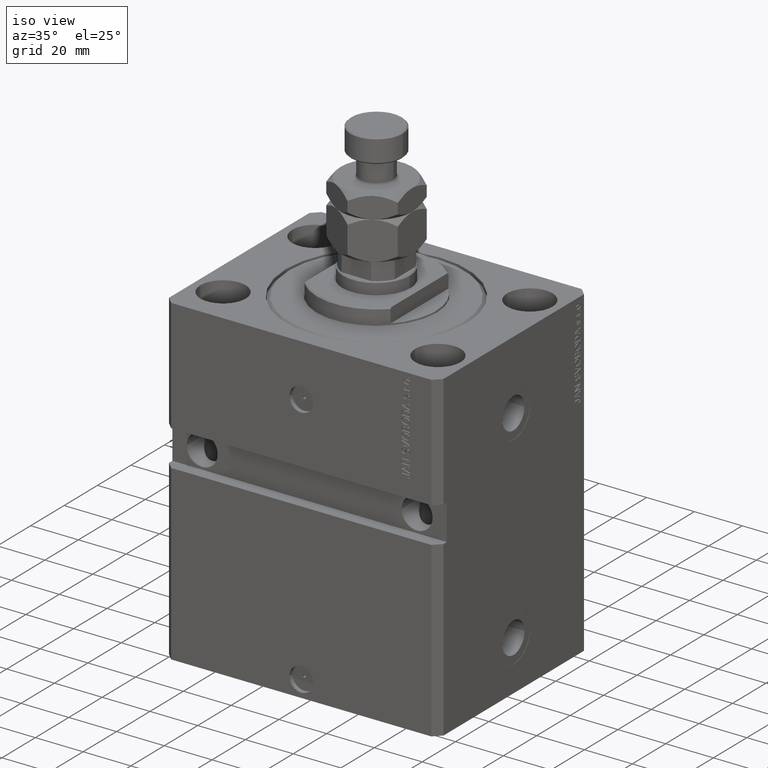
[diagram: clean part render]
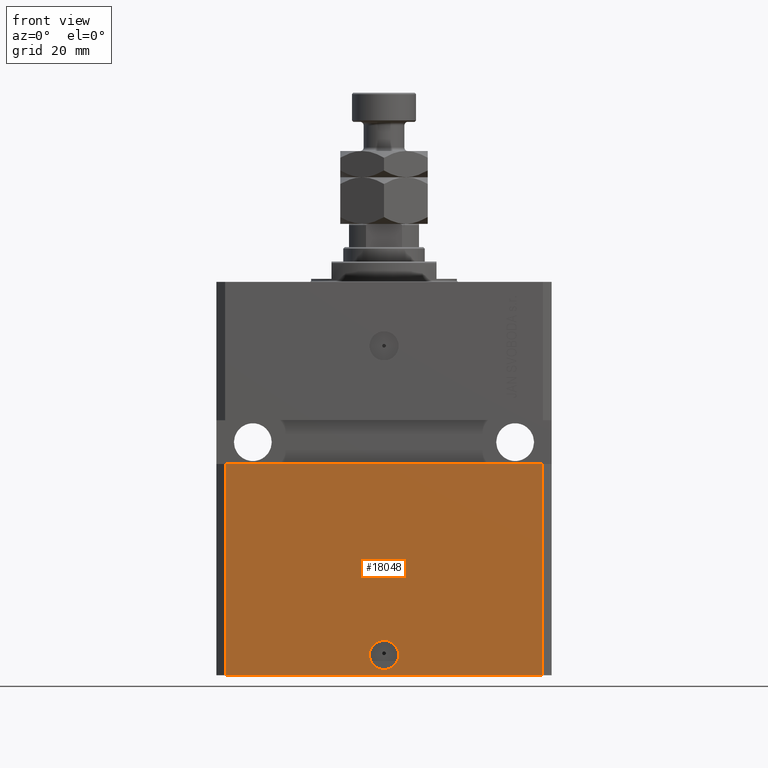
[diagram: tour spotlight — one face highlighted and labeled with its STEP entity id]
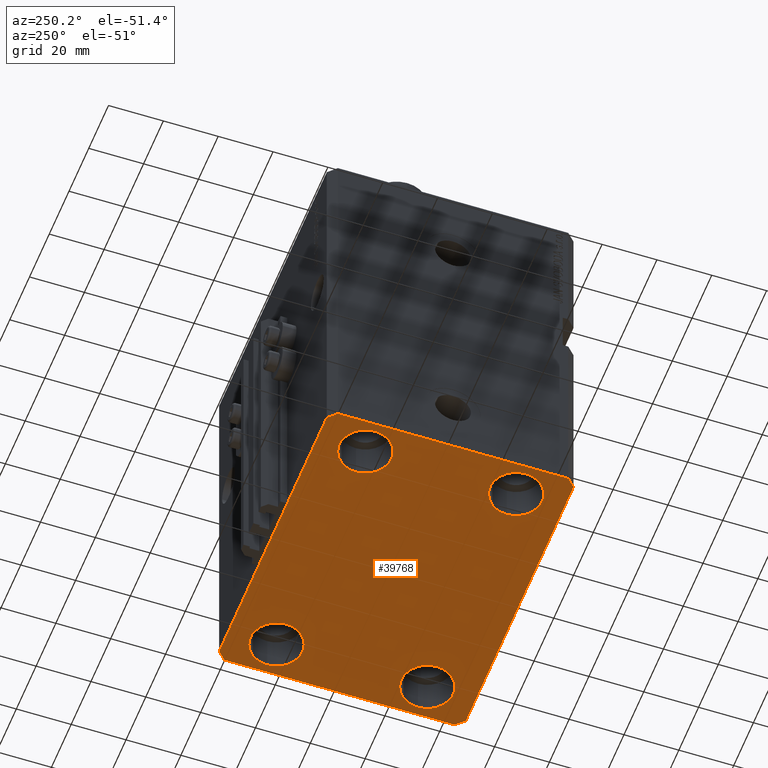
[diagram: tour spotlight — one face highlighted and labeled with its STEP entity id]
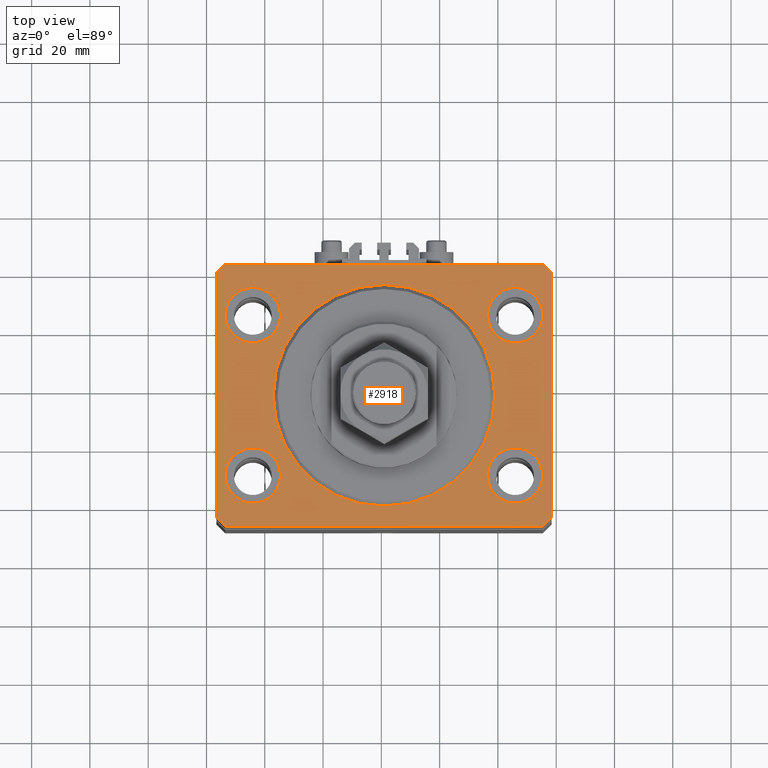
[diagram: tour spotlight — one face highlighted and labeled with its STEP entity id]
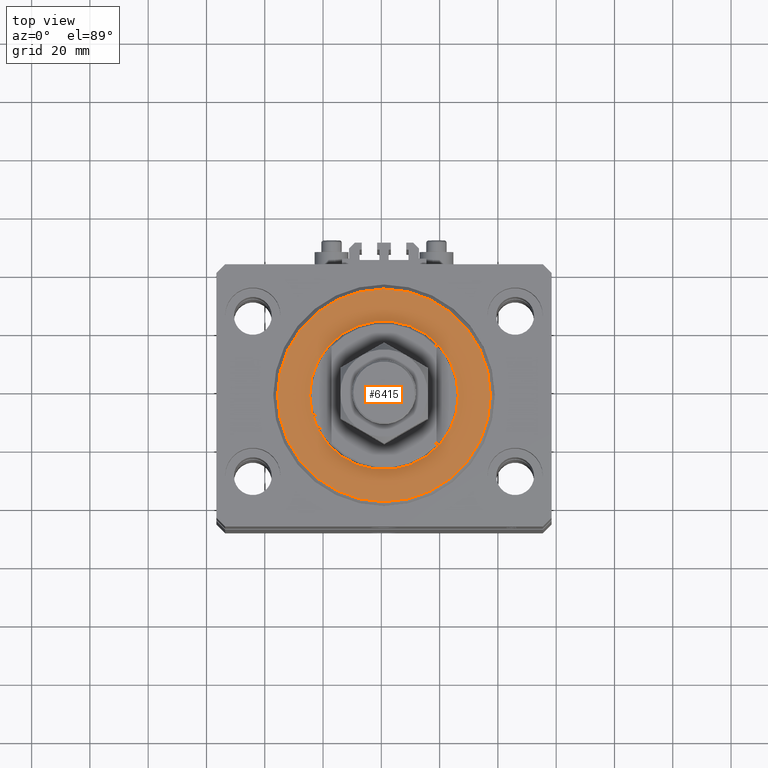
[diagram: tour spotlight — one face highlighted and labeled with its STEP entity id]
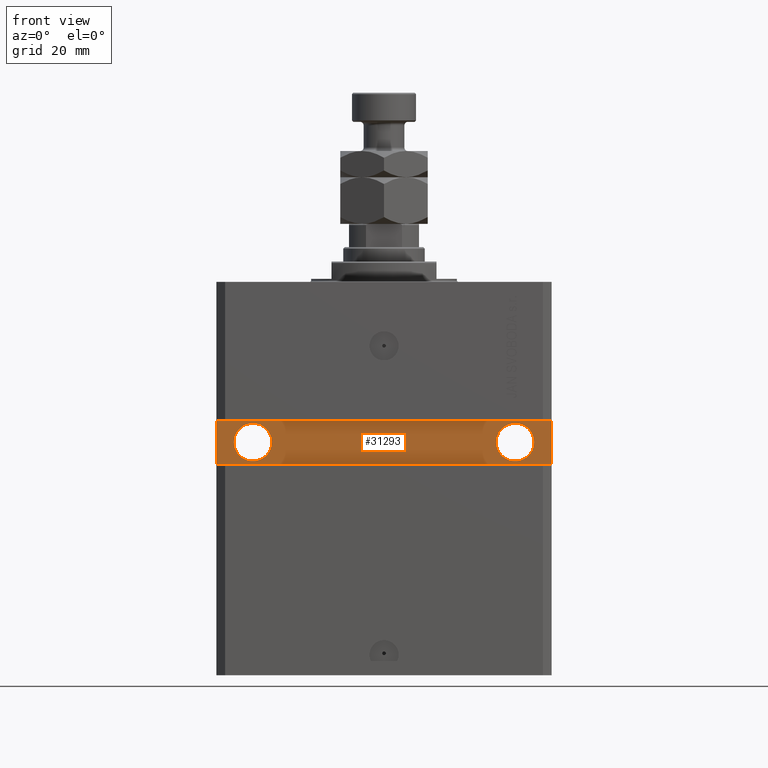
[diagram: tour spotlight — one face highlighted and labeled with its STEP entity id]
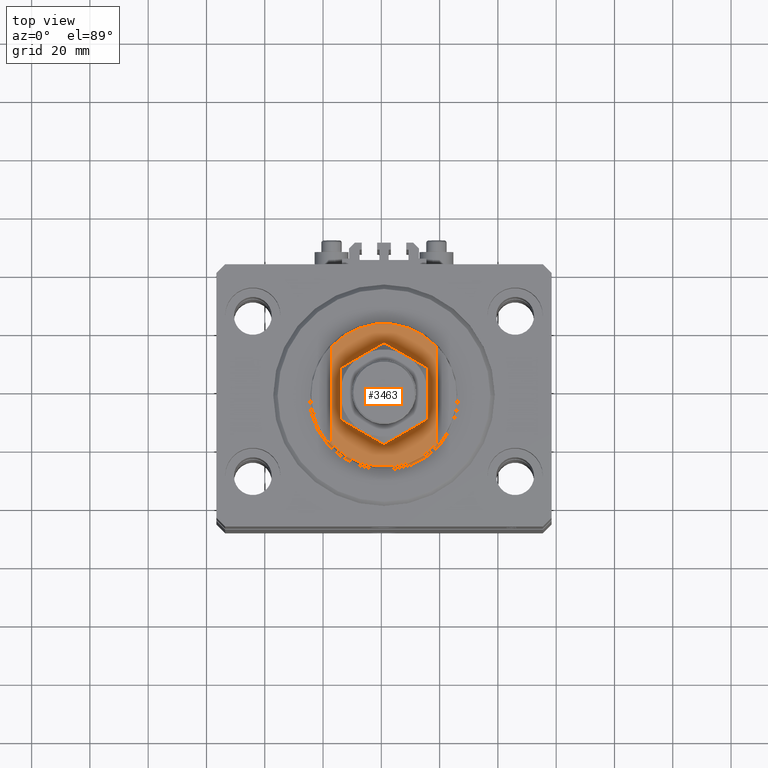
[diagram: tour spotlight — one face highlighted and labeled with its STEP entity id]
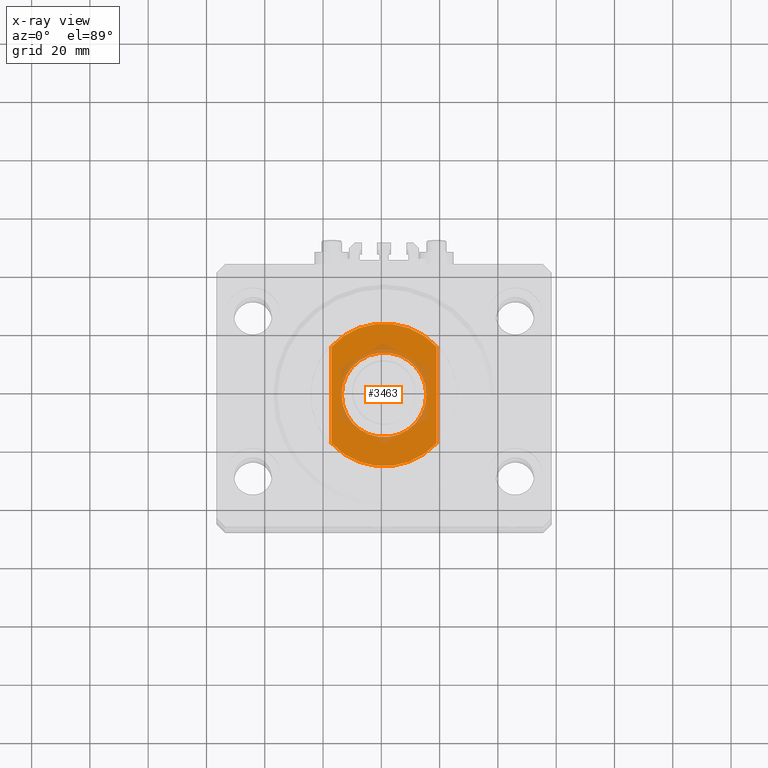
[diagram: x-ray of the same camera — body ghosted, this tour face saturated]
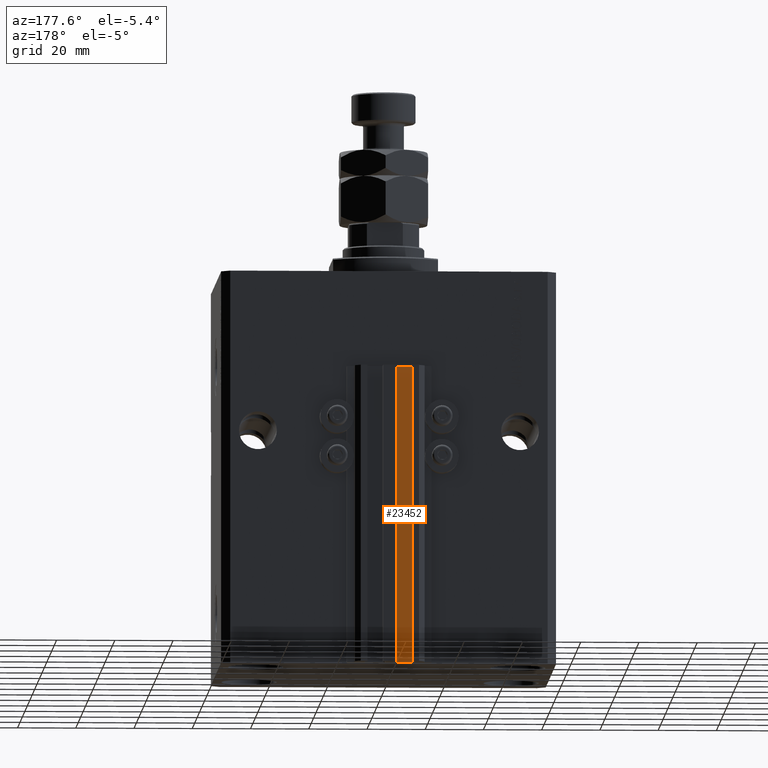
[diagram: tour spotlight — one face highlighted and labeled with its STEP entity id]
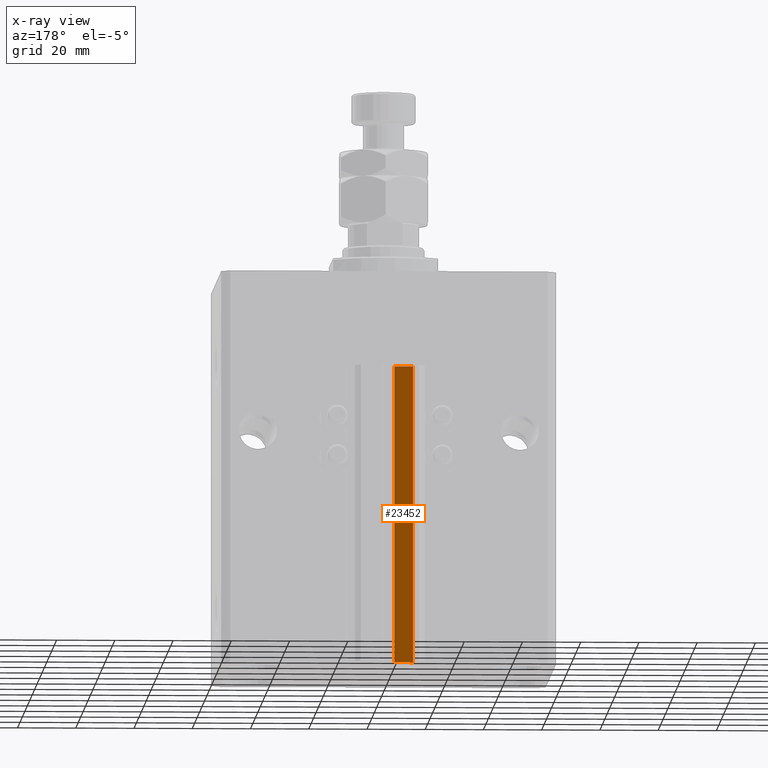
[diagram: x-ray of the same camera — body ghosted, this tour face saturated]
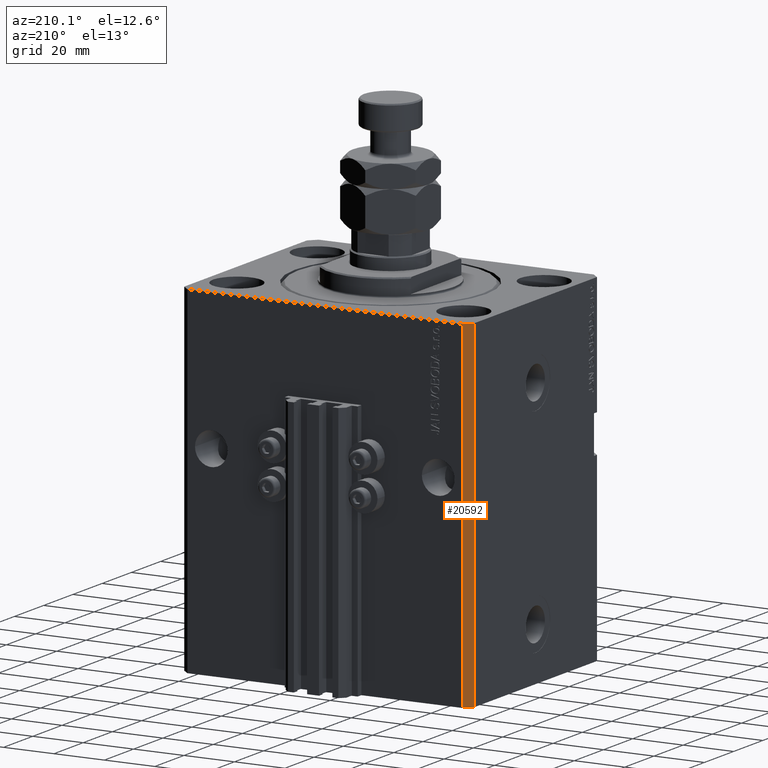
[diagram: tour spotlight — one face highlighted and labeled with its STEP entity id]
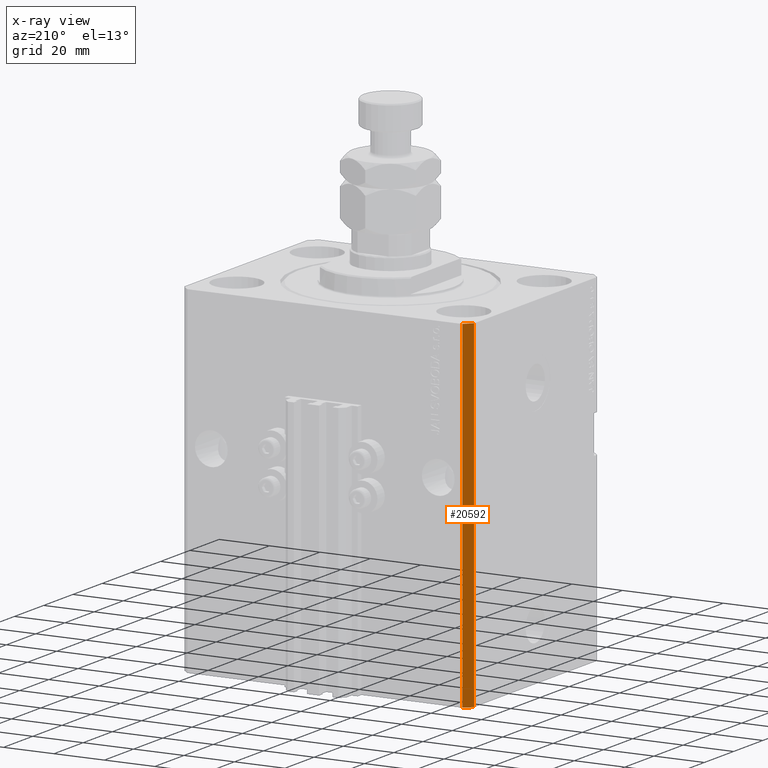
[diagram: x-ray of the same camera — body ghosted, this tour face saturated]
A machine part: a face-by-face anatomy tour. The part has 1175 B-rep faces; the first image is the clean iso view, then the 8 largest visible faces are spotlighted one at a time (largest first), each with its STEP entity span.

Face 1 — front view, entity #18048. In plain terms, the highlighted planar face has unit normal (0, -1, 0).
Definition (entity closure, byte-faithful):
#499 = VERTEX_POINT ( 'NONE', #36718 ) ;
#1494 = DIRECTION ( 'NONE',  ( 1.176083712526788232E-16, -1.000000000000000000, 0.000000000000000000 ) ) ;
#2262 = VERTEX_POINT ( 'NONE', #27358 ) ;
#2692 = EDGE_LOOP ( 'NONE', ( #16749, #21831 ) ) ;
#3036 = LINE ( 'NONE', #15402, #10445 ) ;
#4493 = EDGE_CURVE ( 'NONE', #46043, #27523, #38313, .T. ) ;
#4968 = EDGE_LOOP ( 'NONE', ( #18081, #10798, #20096, #33595 ) ) ;
#6915 = CARTESIAN_POINT ( 'NONE',  ( -54.50000000000000711, -45.00000000000000000, -135.0000000000000000 ) ) ;
#10050 = VECTOR ( 'NONE', #40646, 1000.000000000000000 ) ;
#10281 = FACE_BOUND ( 'NONE', #2692, .T. ) ;
#10445 = VECTOR ( 'NONE', #46766, 1000.000000000000000 ) ;
#10798 = ORIENTED_EDGE ( 'NONE', *, *, #34413, .F. ) ;
#12486 = CIRCLE ( 'NONE', #37949, 5.000000000000006217 ) ;
#13389 = DIRECTION ( 'NONE',  ( 1.273191542001326317E-16, -1.000000000000000000, 0.000000000000000000 ) ) ;
#13400 = VERTEX_POINT ( 'NONE', #25449 ) ;
#14406 = PLANE ( 'NONE',  #16103 ) ;
#14925 = VECTOR ( 'NONE', #49037, 1000.000000000000000 ) ;
#15091 = EDGE_CURVE ( 'NONE', #2262, #499, #3036, .T. ) ;
#15402 = CARTESIAN_POINT ( 'NONE',  ( -57.50000000000000711, -45.00000000000000000, -62.50000000000000000 ) ) ;
#15979 = VECTOR ( 'NONE', #26484, 1000.000000000000000 ) ;
#16103 = AXIS2_PLACEMENT_3D ( 'NONE', #48626, #13389, #25230 ) ;
#16151 = CARTESIAN_POINT ( 'NONE',  ( -54.50000000000000711, -45.00000000000000000, -135.0000000000000000 ) ) ;
#16749 = ORIENTED_EDGE ( 'NONE', *, *, #50555, .F. ) ;
#18048 = ADVANCED_FACE ( 'NONE', ( #10281, #33961 ), #14406, .T. ) ;
#18081 = ORIENTED_EDGE ( 'NONE', *, *, #15091, .F. ) ;
#20096 = ORIENTED_EDGE ( 'NONE', *, *, #4493, .T. ) ;
#20614 = AXIS2_PLACEMENT_3D ( 'NONE', #48567, #1494, #44454 ) ;
#21458 = CIRCLE ( 'NONE', #20614, 5.000000000000006217 ) ;
#21831 = ORIENTED_EDGE ( 'NONE', *, *, #48209, .F. ) ;
#22026 = LINE ( 'NONE', #40569, #14925 ) ;
#25230 = DIRECTION ( 'NONE',  ( 1.000000000000000000, 1.273191542001326317E-16, 0.000000000000000000 ) ) ;
#25449 = CARTESIAN_POINT ( 'NONE',  ( 5.000000000000012434, -44.99999999999999289, -128.0000000000000000 ) ) ;
#25737 = CARTESIAN_POINT ( 'NONE',  ( 5.729361939005967538E-15, -44.99999999999999289, -128.0000000000000000 ) ) ;
#26233 = DIRECTION ( 'NONE',  ( 1.000000000000000000, 0.000000000000000000, 0.000000000000000000 ) ) ;
#26484 = DIRECTION ( 'NONE',  ( 1.000000000000000000, 1.273191542001326317E-16, 0.000000000000000000 ) ) ;
#27358 = CARTESIAN_POINT ( 'NONE',  ( -54.50000000000000711, -45.00000000000000000, -62.50000000000000000 ) ) ;
#27523 = VERTEX_POINT ( 'NONE', #39830 ) ;
#28824 = LINE ( 'NONE', #44488, #10050 ) ;
#30254 = VERTEX_POINT ( 'NONE', #34234 ) ;
#33595 = ORIENTED_EDGE ( 'NONE', *, *, #39284, .T. ) ;
#33961 = FACE_OUTER_BOUND ( 'NONE', #4968, .T. ) ;
#34234 = CARTESIAN_POINT ( 'NONE',  ( -5.000000000000000000, -44.99999999999999289, -128.0000000000000000 ) ) ;
#34413 = EDGE_CURVE ( 'NONE', #46043, #2262, #22026, .T. ) ;
#36718 = CARTESIAN_POINT ( 'NONE',  ( 54.49999999999997868, -44.99999999999998579, -62.49999999999999289 ) ) ;
#37949 = AXIS2_PLACEMENT_3D ( 'NONE', #25737, #44748, #26233 ) ;
#38313 = LINE ( 'NONE', #6915, #15979 ) ;
#39284 = EDGE_CURVE ( 'NONE', #27523, #499, #28824, .T. ) ;
#39830 = CARTESIAN_POINT ( 'NONE',  ( 54.50000000000000711, -44.99999999999998579, -135.0000000000000000 ) ) ;
#40569 = CARTESIAN_POINT ( 'NONE',  ( -54.50000000000000711, -45.00000000000000000, -135.0000000000000000 ) ) ;
#40646 = DIRECTION ( 'NONE',  ( 0.000000000000000000, 0.000000000000000000, 1.000000000000000000 ) ) ;
#44454 = DIRECTION ( 'NONE',  ( 1.000000000000000000, 0.000000000000000000, 0.000000000000000000 ) ) ;
#44488 = CARTESIAN_POINT ( 'NONE',  ( 54.50000000000000711, -44.99999999999998579, -135.0000000000000000 ) ) ;
#44748 = DIRECTION ( 'NONE',  ( 1.176083712526788232E-16, -1.000000000000000000, 0.000000000000000000 ) ) ;
#46043 = VERTEX_POINT ( 'NONE', #16151 ) ;
#46766 = DIRECTION ( 'NONE',  ( 1.000000000000000000, 1.206764157201257045E-16, 6.033820786006285224E-17 ) ) ;
#48209 = EDGE_CURVE ( 'NONE', #30254, #13400, #21458, .T. ) ;
#48567 = CARTESIAN_POINT ( 'NONE',  ( 5.729361939005967538E-15, -44.99999999999999289, -128.0000000000000000 ) ) ;
#48626 = CARTESIAN_POINT ( 'NONE',  ( -54.50000000000000711, -45.00000000000000000, -135.0000000000000000 ) ) ;
#49037 = DIRECTION ( 'NONE',  ( 0.000000000000000000, 0.000000000000000000, 1.000000000000000000 ) ) ;
#50555 = EDGE_CURVE ( 'NONE', #13400, #30254, #12486, .T. ) ;

Face 2 — auxiliary view, entity #39768. In plain terms, the highlighted planar face has unit normal (0, 0, 1).
Definition (entity closure, byte-faithful):
#565 = VERTEX_POINT ( 'NONE', #40834 ) ;
#634 = CARTESIAN_POINT ( 'NONE',  ( -45.00000000000000000, 27.50000000000000355, -135.0000000000000000 ) ) ;
#812 = DIRECTION ( 'NONE',  ( 1.000000000000000000, 0.000000000000000000, 0.000000000000000000 ) ) ;
#881 = DIRECTION ( 'NONE',  ( 1.000000000000000000, 0.000000000000000000, 0.000000000000000000 ) ) ;
#2059 = ORIENTED_EDGE ( 'NONE', *, *, #4493, .F. ) ;
#2451 = EDGE_CURVE ( 'NONE', #30962, #38484, #38286, .T. ) ;
#2860 = CARTESIAN_POINT ( 'NONE',  ( -35.50000000000000000, 27.50000000000000355, -135.0000000000000000 ) ) ;
#3129 = VECTOR ( 'NONE', #31829, 999.9999999999998863 ) ;
#3319 = ORIENTED_EDGE ( 'NONE', *, *, #45439, .T. ) ;
#3499 = EDGE_CURVE ( 'NONE', #38335, #16973, #47082, .T. ) ;
#3576 = EDGE_CURVE ( 'NONE', #8351, #26325, #7714, .T. ) ;
#3761 = CARTESIAN_POINT ( 'NONE',  ( -57.50000000000000711, -42.00000000000000711, -135.0000000000000000 ) ) ;
#3810 = EDGE_CURVE ( 'NONE', #565, #4279, #47146, .T. ) ;
#4279 = VERTEX_POINT ( 'NONE', #31668 ) ;
#4285 = CARTESIAN_POINT ( 'NONE',  ( 57.50000000000055422, 41.99999999999997868, -135.0000000000000000 ) ) ;
#4493 = EDGE_CURVE ( 'NONE', #46043, #27523, #38313, .T. ) ;
#5846 = EDGE_CURVE ( 'NONE', #41487, #46043, #27198, .T. ) ;
#6897 = VECTOR ( 'NONE', #7981, 1000.000000000000000 ) ;
#6904 = CARTESIAN_POINT ( 'NONE',  ( 57.50000000000055422, 41.99999999999997868, -135.0000000000000000 ) ) ;
#6915 = CARTESIAN_POINT ( 'NONE',  ( -54.50000000000000711, -45.00000000000000000, -135.0000000000000000 ) ) ;
#7444 = ORIENTED_EDGE ( 'NONE', *, *, #33770, .T. ) ;
#7714 = CIRCLE ( 'NONE', #12626, 9.500000000000001776 ) ;
#7981 = DIRECTION ( 'NONE',  ( -0.7071067811865483499, -0.7071067811865466846, 0.000000000000000000 ) ) ;
#8189 = ORIENTED_EDGE ( 'NONE', *, *, #25176, .F. ) ;
#8351 = VERTEX_POINT ( 'NONE', #24687 ) ;
#8487 = CARTESIAN_POINT ( 'NONE',  ( -54.49999999999999289, 45.00000000000000000, -135.0000000000000000 ) ) ;
#8529 = DIRECTION ( 'NONE',  ( 1.000000000000000000, 0.000000000000000000, 0.000000000000000000 ) ) ;
#8783 = DIRECTION ( 'NONE',  ( -0.000000000000000000, -0.000000000000000000, 1.000000000000000000 ) ) ;
#9261 = CARTESIAN_POINT ( 'NONE',  ( 45.00000000000000000, 27.50000000000001776, -135.0000000000000000 ) ) ;
#9753 = DIRECTION ( 'NONE',  ( -0.000000000000000000, -0.000000000000000000, 1.000000000000000000 ) ) ;
#10001 = DIRECTION ( 'NONE',  ( 1.000000000000000000, 0.000000000000000000, 0.000000000000000000 ) ) ;
#10300 = DIRECTION ( 'NONE',  ( -0.000000000000000000, -0.000000000000000000, 1.000000000000000000 ) ) ;
#10652 = AXIS2_PLACEMENT_3D ( 'NONE', #36070, #8783, #812 ) ;
#11482 = DIRECTION ( 'NONE',  ( 0.000000000000000000, 0.000000000000000000, 1.000000000000000000 ) ) ;
#11844 = CARTESIAN_POINT ( 'NONE',  ( -54.49999999999999289, 45.00000000000000000, -135.0000000000000000 ) ) ;
#12626 = AXIS2_PLACEMENT_3D ( 'NONE', #17752, #9753, #10001 ) ;
#12971 = DIRECTION ( 'NONE',  ( -0.000000000000000000, -0.000000000000000000, 1.000000000000000000 ) ) ;
#13497 = DIRECTION ( 'NONE',  ( 1.000000000000000000, 0.000000000000000000, 0.000000000000000000 ) ) ;
#13652 = EDGE_LOOP ( 'NONE', ( #49603, #34876, #45032, #30931, #2059, #24929, #8189, #30503 ) ) ;
#13937 = CIRCLE ( 'NONE', #22980, 9.500000000000001776 ) ;
#14367 = CARTESIAN_POINT ( 'NONE',  ( 57.50000000000000711, -41.99999999999998579, -135.0000000000000000 ) ) ;
#14656 = CARTESIAN_POINT ( 'NONE',  ( -57.49999999999998579, 42.00000000000000711, -135.0000000000000000 ) ) ;
#15045 = LINE ( 'NONE', #34589, #34426 ) ;
#15906 = CARTESIAN_POINT ( 'NONE',  ( 54.50000000000058975, 45.00000000000002842, -135.0000000000000000 ) ) ;
#15979 = VECTOR ( 'NONE', #26484, 1000.000000000000000 ) ;
#16151 = CARTESIAN_POINT ( 'NONE',  ( -54.50000000000000711, -45.00000000000000000, -135.0000000000000000 ) ) ;
#16392 = AXIS2_PLACEMENT_3D ( 'NONE', #634, #12971, #35640 ) ;
#16411 = ORIENTED_EDGE ( 'NONE', *, *, #3810, .T. ) ;
#16709 = EDGE_LOOP ( 'NONE', ( #7444, #28762 ) ) ;
#16806 = EDGE_CURVE ( 'NONE', #4279, #565, #28606, .T. ) ;
#16973 = VERTEX_POINT ( 'NONE', #14656 ) ;
#17752 = CARTESIAN_POINT ( 'NONE',  ( -45.00000000000000000, -27.49999999999999645, -135.0000000000000000 ) ) ;
#17799 = DIRECTION ( 'NONE',  ( 1.000000000000000000, 0.000000000000000000, 0.000000000000000000 ) ) ;
#18194 = FACE_BOUND ( 'NONE', #16709, .T. ) ;
#18195 = CIRCLE ( 'NONE', #33824, 9.500000000000001776 ) ;
#19216 = FACE_BOUND ( 'NONE', #26971, .T. ) ;
#19413 = EDGE_LOOP ( 'NONE', ( #50001, #16411 ) ) ;
#19857 = DIRECTION ( 'NONE',  ( -0.000000000000000000, -0.000000000000000000, 1.000000000000000000 ) ) ;
#21493 = AXIS2_PLACEMENT_3D ( 'NONE', #23228, #19857, #8529 ) ;
#21996 = VERTEX_POINT ( 'NONE', #46742 ) ;
#22803 = EDGE_CURVE ( 'NONE', #38484, #21996, #35686, .T. ) ;
#22980 = AXIS2_PLACEMENT_3D ( 'NONE', #28426, #24322, #881 ) ;
#23228 = CARTESIAN_POINT ( 'NONE',  ( 45.00000000000000000, -27.49999999999999645, -135.0000000000000000 ) ) ;
#24030 = VECTOR ( 'NONE', #31849, 1000.000000000000000 ) ;
#24322 = DIRECTION ( 'NONE',  ( -0.000000000000000000, -0.000000000000000000, 1.000000000000000000 ) ) ;
#24687 = CARTESIAN_POINT ( 'NONE',  ( -35.50000000000000000, -27.49999999999999645, -135.0000000000000000 ) ) ;
#24900 = DIRECTION ( 'NONE',  ( 0.7071067811865483499, 0.7071067811865466846, 0.000000000000000000 ) ) ;
#24929 = ORIENTED_EDGE ( 'NONE', *, *, #5846, .F. ) ;
#25176 = EDGE_CURVE ( 'NONE', #16973, #41487, #15045, .T. ) ;
#26325 = VERTEX_POINT ( 'NONE', #38657 ) ;
#26353 = CARTESIAN_POINT ( 'NONE',  ( 45.00000000000000000, 27.50000000000001776, -135.0000000000000000 ) ) ;
#26422 = CIRCLE ( 'NONE', #21493, 9.500000000000001776 ) ;
#26484 = DIRECTION ( 'NONE',  ( 1.000000000000000000, 1.273191542001326317E-16, 0.000000000000000000 ) ) ;
#26572 = VECTOR ( 'NONE', #32460, 1000.000000000000000 ) ;
#26631 = DIRECTION ( 'NONE',  ( -2.478176394252581141E-16, -1.000000000000000000, 0.000000000000000000 ) ) ;
#26971 = EDGE_LOOP ( 'NONE', ( #3319, #37067 ) ) ;
#27198 = LINE ( 'NONE', #3761, #40656 ) ;
#27523 = VERTEX_POINT ( 'NONE', #39830 ) ;
#27657 = CARTESIAN_POINT ( 'NONE',  ( 35.50000000000000000, -27.49999999999999645, -135.0000000000000000 ) ) ;
#28426 = CARTESIAN_POINT ( 'NONE',  ( -45.00000000000000000, 27.50000000000000355, -135.0000000000000000 ) ) ;
#28606 = CIRCLE ( 'NONE', #45842, 9.500000000000001776 ) ;
#28740 = CIRCLE ( 'NONE', #10652, 9.500000000000001776 ) ;
#28762 = ORIENTED_EDGE ( 'NONE', *, *, #3576, .T. ) ;
#28768 = LINE ( 'NONE', #36732, #31527 ) ;
#29379 = CARTESIAN_POINT ( 'NONE',  ( -45.00000000000000000, -27.49999999999999645, -135.0000000000000000 ) ) ;
#30029 = FACE_BOUND ( 'NONE', #19413, .T. ) ;
#30180 = EDGE_CURVE ( 'NONE', #32377, #47367, #28740, .T. ) ;
#30275 = PLANE ( 'NONE',  #38010 ) ;
#30503 = ORIENTED_EDGE ( 'NONE', *, *, #3499, .F. ) ;
#30931 = ORIENTED_EDGE ( 'NONE', *, *, #37618, .F. ) ;
#30962 = VERTEX_POINT ( 'NONE', #44540 ) ;
#31527 = VECTOR ( 'NONE', #24900, 1000.000000000000000 ) ;
#31561 = EDGE_LOOP ( 'NONE', ( #33376, #38333 ) ) ;
#31639 = VERTEX_POINT ( 'NONE', #32167 ) ;
#31668 = CARTESIAN_POINT ( 'NONE',  ( 35.50000000000000000, 27.50000000000001776, -135.0000000000000000 ) ) ;
#31829 = DIRECTION ( 'NONE',  ( -0.7071067811865376918, 0.7071067811865574537, 0.000000000000000000 ) ) ;
#31849 = DIRECTION ( 'NONE',  ( -1.000000000000000000, -2.546383084002639322E-16, 0.000000000000000000 ) ) ;
#32167 = CARTESIAN_POINT ( 'NONE',  ( -54.50000000000000000, 27.50000000000000355, -135.0000000000000000 ) ) ;
#32377 = VERTEX_POINT ( 'NONE', #27657 ) ;
#32460 = DIRECTION ( 'NONE',  ( 6.443258625056715108E-15, 1.000000000000000000, 0.000000000000000000 ) ) ;
#33141 = CARTESIAN_POINT ( 'NONE',  ( 54.50000000000000000, -27.49999999999999645, -135.0000000000000000 ) ) ;
#33376 = ORIENTED_EDGE ( 'NONE', *, *, #30180, .T. ) ;
#33699 = DIRECTION ( 'NONE',  ( 1.000000000000000000, 0.000000000000000000, 0.000000000000000000 ) ) ;
#33770 = EDGE_CURVE ( 'NONE', #26325, #8351, #18195, .T. ) ;
#33824 = AXIS2_PLACEMENT_3D ( 'NONE', #29379, #10300, #17799 ) ;
#33876 = FACE_BOUND ( 'NONE', #31561, .T. ) ;
#34426 = VECTOR ( 'NONE', #26631, 1000.000000000000000 ) ;
#34589 = CARTESIAN_POINT ( 'NONE',  ( -57.49999999999998579, 42.00000000000000711, -135.0000000000000000 ) ) ;
#34876 = ORIENTED_EDGE ( 'NONE', *, *, #22803, .F. ) ;
#35640 = DIRECTION ( 'NONE',  ( 1.000000000000000000, 0.000000000000000000, 0.000000000000000000 ) ) ;
#35686 = LINE ( 'NONE', #4285, #3129 ) ;
#36070 = CARTESIAN_POINT ( 'NONE',  ( 45.00000000000000000, -27.49999999999999645, -135.0000000000000000 ) ) ;
#36732 = CARTESIAN_POINT ( 'NONE',  ( 54.50000000000000711, -44.99999999999998579, -135.0000000000000000 ) ) ;
#37067 = ORIENTED_EDGE ( 'NONE', *, *, #45444, .T. ) ;
#37260 = VERTEX_POINT ( 'NONE', #2860 ) ;
#37618 = EDGE_CURVE ( 'NONE', #27523, #30962, #28768, .T. ) ;
#38010 = AXIS2_PLACEMENT_3D ( 'NONE', #45946, #11482, #46463 ) ;
#38286 = LINE ( 'NONE', #14367, #26572 ) ;
#38313 = LINE ( 'NONE', #6915, #15979 ) ;
#38333 = ORIENTED_EDGE ( 'NONE', *, *, #49058, .T. ) ;
#38335 = VERTEX_POINT ( 'NONE', #8487 ) ;
#38484 = VERTEX_POINT ( 'NONE', #6904 ) ;
#38654 = EDGE_CURVE ( 'NONE', #21996, #38335, #40327, .T. ) ;
#38657 = CARTESIAN_POINT ( 'NONE',  ( -54.50000000000000000, -27.49999999999999645, -135.0000000000000000 ) ) ;
#39768 = ADVANCED_FACE ( 'NONE', ( #18194, #33876, #30029, #19216, #50076 ), #30275, .F. ) ;
#39830 = CARTESIAN_POINT ( 'NONE',  ( 54.50000000000000711, -44.99999999999998579, -135.0000000000000000 ) ) ;
#40327 = LINE ( 'NONE', #15906, #24030 ) ;
#40611 = CARTESIAN_POINT ( 'NONE',  ( -57.50000000000000711, -42.00000000000000711, -135.0000000000000000 ) ) ;
#40656 = VECTOR ( 'NONE', #41853, 1000.000000000000114 ) ;
#40834 = CARTESIAN_POINT ( 'NONE',  ( 54.50000000000000000, 27.50000000000001776, -135.0000000000000000 ) ) ;
#41172 = DIRECTION ( 'NONE',  ( -0.000000000000000000, -0.000000000000000000, 1.000000000000000000 ) ) ;
#41487 = VERTEX_POINT ( 'NONE', #40611 ) ;
#41853 = DIRECTION ( 'NONE',  ( 0.7071067811865491270, -0.7071067811865459074, 0.000000000000000000 ) ) ;
#43851 = AXIS2_PLACEMENT_3D ( 'NONE', #26353, #45375, #13497 ) ;
#44540 = CARTESIAN_POINT ( 'NONE',  ( 57.50000000000000711, -41.99999999999998579, -135.0000000000000000 ) ) ;
#45032 = ORIENTED_EDGE ( 'NONE', *, *, #2451, .F. ) ;
#45375 = DIRECTION ( 'NONE',  ( -0.000000000000000000, -0.000000000000000000, 1.000000000000000000 ) ) ;
#45439 = EDGE_CURVE ( 'NONE', #31639, #37260, #48433, .T. ) ;
#45444 = EDGE_CURVE ( 'NONE', #37260, #31639, #13937, .T. ) ;
#45842 = AXIS2_PLACEMENT_3D ( 'NONE', #9261, #41172, #33699 ) ;
#45946 = CARTESIAN_POINT ( 'NONE',  ( 0.000000000000000000, 0.000000000000000000, -135.0000000000000000 ) ) ;
#46043 = VERTEX_POINT ( 'NONE', #16151 ) ;
#46463 = DIRECTION ( 'NONE',  ( 1.000000000000000000, 0.000000000000000000, -0.000000000000000000 ) ) ;
#46742 = CARTESIAN_POINT ( 'NONE',  ( 54.50000000000058975, 45.00000000000002842, -135.0000000000000000 ) ) ;
#47082 = LINE ( 'NONE', #11844, #6897 ) ;
#47146 = CIRCLE ( 'NONE', #43851, 9.500000000000001776 ) ;
#47367 = VERTEX_POINT ( 'NONE', #33141 ) ;
#48433 = CIRCLE ( 'NONE', #16392, 9.500000000000001776 ) ;
#49058 = EDGE_CURVE ( 'NONE', #47367, #32377, #26422, .T. ) ;
#49603 = ORIENTED_EDGE ( 'NONE', *, *, #38654, .F. ) ;
#50001 = ORIENTED_EDGE ( 'NONE', *, *, #16806, .T. ) ;
#50076 = FACE_OUTER_BOUND ( 'NONE', #13652, .T. ) ;

Face 3 — top view, entity #2918. In plain terms, the highlighted planar face has unit normal (0, 0, 1).
Definition (entity closure, byte-faithful):
#116 = AXIS2_PLACEMENT_3D ( 'NONE', #10195, #26160, #49556 ) ;
#763 = DIRECTION ( 'NONE',  ( 0.000000000000000000, 0.000000000000000000, 1.000000000000000000 ) ) ;
#1192 = DIRECTION ( 'NONE',  ( 0.000000000000000000, 0.000000000000000000, 1.000000000000000000 ) ) ;
#1228 = EDGE_CURVE ( 'NONE', #15057, #23550, #35593, .T. ) ;
#1669 = DIRECTION ( 'NONE',  ( 6.443258625056715108E-15, 1.000000000000000000, 0.000000000000000000 ) ) ;
#1725 = EDGE_CURVE ( 'NONE', #35041, #26716, #6820, .T. ) ;
#1864 = CARTESIAN_POINT ( 'NONE',  ( 0.000000000000000000, 0.000000000000000000, 0.000000000000000000 ) ) ;
#2209 = CARTESIAN_POINT ( 'NONE',  ( -54.50000000000000000, -27.49999999999999645, 0.000000000000000000 ) ) ;
#2508 = EDGE_LOOP ( 'NONE', ( #2758, #14285 ) ) ;
#2758 = ORIENTED_EDGE ( 'NONE', *, *, #8731, .F. ) ;
#2918 = ADVANCED_FACE ( 'NONE', ( #42339, #42851, #42601, #38748, #15585, #39001 ), #38489, .T. ) ;
#2966 = DIRECTION ( 'NONE',  ( 0.000000000000000000, 0.000000000000000000, 1.000000000000000000 ) ) ;
#3084 = VERTEX_POINT ( 'NONE', #13745 ) ;
#3346 = CIRCLE ( 'NONE', #22235, 38.00000000000000000 ) ;
#3568 = EDGE_CURVE ( 'NONE', #23040, #13323, #9352, .T. ) ;
#3735 = DIRECTION ( 'NONE',  ( 1.000000000000000000, 0.000000000000000000, -0.000000000000000000 ) ) ;
#4174 = DIRECTION ( 'NONE',  ( 0.000000000000000000, 0.000000000000000000, 1.000000000000000000 ) ) ;
#5044 = DIRECTION ( 'NONE',  ( -0.7071067811865376918, 0.7071067811865574537, 0.000000000000000000 ) ) ;
#5334 = ORIENTED_EDGE ( 'NONE', *, *, #1725, .F. ) ;
#5688 = VECTOR ( 'NONE', #1669, 1000.000000000000000 ) ;
#6371 = CARTESIAN_POINT ( 'NONE',  ( -35.50000000000000000, -27.49999999999999645, 0.000000000000000000 ) ) ;
#6820 = CIRCLE ( 'NONE', #35549, 9.500000000000001776 ) ;
#7425 = EDGE_CURVE ( 'NONE', #39803, #24241, #24622, .T. ) ;
#7640 = LINE ( 'NONE', #38786, #45247 ) ;
#8144 = VERTEX_POINT ( 'NONE', #45050 ) ;
#8178 = EDGE_LOOP ( 'NONE', ( #28622, #42632 ) ) ;
#8479 = AXIS2_PLACEMENT_3D ( 'NONE', #42075, #30773, #3735 ) ;
#8731 = EDGE_CURVE ( 'NONE', #38013, #13801, #11048, .T. ) ;
#9352 = CIRCLE ( 'NONE', #46301, 9.500000000000001776 ) ;
#9593 = CARTESIAN_POINT ( 'NONE',  ( -54.49999999999999289, 45.00000000000000000, 0.000000000000000000 ) ) ;
#9950 = VECTOR ( 'NONE', #41995, 1000.000000000000000 ) ;
#10195 = CARTESIAN_POINT ( 'NONE',  ( -45.00000000000000000, -27.49999999999999645, 0.000000000000000000 ) ) ;
#10732 = CARTESIAN_POINT ( 'NONE',  ( 35.50000000000000000, 27.50000000000001776, 0.000000000000000000 ) ) ;
#11048 = CIRCLE ( 'NONE', #34077, 9.500000000000001776 ) ;
#11616 = DIRECTION ( 'NONE',  ( 1.000000000000000000, 1.273191542001326317E-16, 0.000000000000000000 ) ) ;
#11869 = EDGE_CURVE ( 'NONE', #3084, #17263, #31164, .T. ) ;
#11916 = DIRECTION ( 'NONE',  ( 0.000000000000000000, 0.000000000000000000, 1.000000000000000000 ) ) ;
#11948 = AXIS2_PLACEMENT_3D ( 'NONE', #14054, #2966, #22275 ) ;
#12182 = ORIENTED_EDGE ( 'NONE', *, *, #48337, .T. ) ;
#12261 = EDGE_CURVE ( 'NONE', #13801, #38013, #39159, .T. ) ;
#12515 = EDGE_CURVE ( 'NONE', #26716, #35041, #47355, .T. ) ;
#12772 = CARTESIAN_POINT ( 'NONE',  ( 0.000000000000000000, 0.000000000000000000, 0.000000000000000000 ) ) ;
#12834 = AXIS2_PLACEMENT_3D ( 'NONE', #38444, #33570, #33813 ) ;
#13323 = VERTEX_POINT ( 'NONE', #6371 ) ;
#13745 = CARTESIAN_POINT ( 'NONE',  ( 54.50000000000000711, -44.99999999999998579, 0.000000000000000000 ) ) ;
#13801 = VERTEX_POINT ( 'NONE', #26327 ) ;
#14054 = CARTESIAN_POINT ( 'NONE',  ( 45.00000000000000000, -27.49999999999999645, 0.000000000000000000 ) ) ;
#14285 = ORIENTED_EDGE ( 'NONE', *, *, #12261, .F. ) ;
#15057 = VERTEX_POINT ( 'NONE', #37034 ) ;
#15532 = CARTESIAN_POINT ( 'NONE',  ( -45.00000000000000000, 27.50000000000000355, 0.000000000000000000 ) ) ;
#15585 = FACE_BOUND ( 'NONE', #8178, .T. ) ;
#15871 = AXIS2_PLACEMENT_3D ( 'NONE', #46066, #42483, #45568 ) ;
#16466 = VECTOR ( 'NONE', #11616, 1000.000000000000000 ) ;
#17263 = VERTEX_POINT ( 'NONE', #21552 ) ;
#17536 = CARTESIAN_POINT ( 'NONE',  ( -57.50000000000000711, -42.00000000000000711, 0.000000000000000000 ) ) ;
#17578 = DIRECTION ( 'NONE',  ( 1.000000000000000000, 0.000000000000000000, 0.000000000000000000 ) ) ;
#18076 = CARTESIAN_POINT ( 'NONE',  ( -35.50000000000000000, 27.50000000000000355, 0.000000000000000000 ) ) ;
#18708 = CARTESIAN_POINT ( 'NONE',  ( 54.50000000000058975, 45.00000000000002842, 0.000000000000000000 ) ) ;
#18822 = DIRECTION ( 'NONE',  ( 0.7071067811865483499, 0.7071067811865466846, 0.000000000000000000 ) ) ;
#19710 = CARTESIAN_POINT ( 'NONE',  ( -45.00000000000000000, 27.50000000000000355, 0.000000000000000000 ) ) ;
#20239 = ORIENTED_EDGE ( 'NONE', *, *, #3568, .F. ) ;
#20726 = LINE ( 'NONE', #44130, #5688 ) ;
#21552 = CARTESIAN_POINT ( 'NONE',  ( 57.50000000000000711, -41.99999999999998579, 0.000000000000000000 ) ) ;
#22235 = AXIS2_PLACEMENT_3D ( 'NONE', #1864, #37380, #17578 ) ;
#22275 = DIRECTION ( 'NONE',  ( 1.000000000000000000, 0.000000000000000000, 0.000000000000000000 ) ) ;
#22298 = CIRCLE ( 'NONE', #116, 9.500000000000001776 ) ;
#22464 = EDGE_LOOP ( 'NONE', ( #41485, #36645 ) ) ;
#22769 = EDGE_LOOP ( 'NONE', ( #5334, #41235 ) ) ;
#22919 = EDGE_CURVE ( 'NONE', #40166, #8144, #47488, .T. ) ;
#23040 = VERTEX_POINT ( 'NONE', #2209 ) ;
#23550 = VERTEX_POINT ( 'NONE', #32212 ) ;
#23641 = CARTESIAN_POINT ( 'NONE',  ( -57.50000000000000711, -42.00000000000000711, 0.000000000000000000 ) ) ;
#24241 = VERTEX_POINT ( 'NONE', #37362 ) ;
#24621 = DIRECTION ( 'NONE',  ( 1.000000000000000000, 0.000000000000000000, 0.000000000000000000 ) ) ;
#24622 = LINE ( 'NONE', #36958, #46343 ) ;
#24845 = EDGE_CURVE ( 'NONE', #24241, #36876, #34910, .T. ) ;
#25107 = CIRCLE ( 'NONE', #11948, 9.500000000000001776 ) ;
#25327 = AXIS2_PLACEMENT_3D ( 'NONE', #12772, #1192, #24621 ) ;
#25756 = ORIENTED_EDGE ( 'NONE', *, *, #49681, .F. ) ;
#26160 = DIRECTION ( 'NONE',  ( 0.000000000000000000, 0.000000000000000000, 1.000000000000000000 ) ) ;
#26191 = DIRECTION ( 'NONE',  ( -2.478176394252581141E-16, -1.000000000000000000, 0.000000000000000000 ) ) ;
#26305 = LINE ( 'NONE', #27077, #16466 ) ;
#26327 = CARTESIAN_POINT ( 'NONE',  ( -54.50000000000000000, 27.50000000000000355, 0.000000000000000000 ) ) ;
#26716 = VERTEX_POINT ( 'NONE', #10732 ) ;
#27077 = CARTESIAN_POINT ( 'NONE',  ( -54.50000000000000711, -45.00000000000000000, 0.000000000000000000 ) ) ;
#27195 = DIRECTION ( 'NONE',  ( -1.000000000000000000, -2.546383084002639322E-16, 0.000000000000000000 ) ) ;
#27941 = DIRECTION ( 'NONE',  ( 0.000000000000000000, 0.000000000000000000, 1.000000000000000000 ) ) ;
#28046 = CARTESIAN_POINT ( 'NONE',  ( 54.50000000000000000, 27.50000000000001776, 0.000000000000000000 ) ) ;
#28051 = DIRECTION ( 'NONE',  ( 1.000000000000000000, 0.000000000000000000, 0.000000000000000000 ) ) ;
#28570 = EDGE_CURVE ( 'NONE', #17263, #39803, #20726, .T. ) ;
#28622 = ORIENTED_EDGE ( 'NONE', *, *, #22919, .F. ) ;
#28665 = VECTOR ( 'NONE', #27195, 1000.000000000000000 ) ;
#29192 = CARTESIAN_POINT ( 'NONE',  ( -57.49999999999998579, 42.00000000000000711, 0.000000000000000000 ) ) ;
#29285 = VECTOR ( 'NONE', #18822, 1000.000000000000000 ) ;
#30773 = DIRECTION ( 'NONE',  ( 0.000000000000000000, 0.000000000000000000, 1.000000000000000000 ) ) ;
#30818 = EDGE_LOOP ( 'NONE', ( #25756, #20239 ) ) ;
#31164 = LINE ( 'NONE', #38890, #29285 ) ;
#31491 = CARTESIAN_POINT ( 'NONE',  ( 38.00000000000000000, 0.000000000000000000, 0.000000000000000000 ) ) ;
#32212 = CARTESIAN_POINT ( 'NONE',  ( 54.50000000000000000, -27.49999999999999645, 0.000000000000000000 ) ) ;
#32653 = EDGE_CURVE ( 'NONE', #36876, #43536, #34030, .T. ) ;
#33021 = ORIENTED_EDGE ( 'NONE', *, *, #7425, .T. ) ;
#33417 = CARTESIAN_POINT ( 'NONE',  ( -54.50000000000000711, -45.00000000000000000, 0.000000000000000000 ) ) ;
#33570 = DIRECTION ( 'NONE',  ( 0.000000000000000000, 0.000000000000000000, 1.000000000000000000 ) ) ;
#33813 = DIRECTION ( 'NONE',  ( 1.000000000000000000, 0.000000000000000000, 0.000000000000000000 ) ) ;
#34030 = LINE ( 'NONE', #9593, #9950 ) ;
#34077 = AXIS2_PLACEMENT_3D ( 'NONE', #15532, #4174, #39196 ) ;
#34094 = VERTEX_POINT ( 'NONE', #33417 ) ;
#34902 = DIRECTION ( 'NONE',  ( 1.000000000000000000, 0.000000000000000000, 0.000000000000000000 ) ) ;
#34910 = LINE ( 'NONE', #18708, #28665 ) ;
#35041 = VERTEX_POINT ( 'NONE', #28046 ) ;
#35462 = LINE ( 'NONE', #23641, #42164 ) ;
#35549 = AXIS2_PLACEMENT_3D ( 'NONE', #47155, #11916, #39451 ) ;
#35593 = CIRCLE ( 'NONE', #15871, 9.500000000000001776 ) ;
#36645 = ORIENTED_EDGE ( 'NONE', *, *, #1228, .F. ) ;
#36876 = VERTEX_POINT ( 'NONE', #40267 ) ;
#36958 = CARTESIAN_POINT ( 'NONE',  ( 57.50000000000055422, 41.99999999999997868, 0.000000000000000000 ) ) ;
#37034 = CARTESIAN_POINT ( 'NONE',  ( 35.50000000000000000, -27.49999999999999645, 0.000000000000000000 ) ) ;
#37362 = CARTESIAN_POINT ( 'NONE',  ( 54.50000000000058975, 45.00000000000002842, 0.000000000000000000 ) ) ;
#37380 = DIRECTION ( 'NONE',  ( 0.000000000000000000, 0.000000000000000000, 1.000000000000000000 ) ) ;
#37460 = EDGE_CURVE ( 'NONE', #49134, #34094, #35462, .T. ) ;
#38013 = VERTEX_POINT ( 'NONE', #18076 ) ;
#38444 = CARTESIAN_POINT ( 'NONE',  ( 45.00000000000000000, 27.50000000000001776, 0.000000000000000000 ) ) ;
#38489 = PLANE ( 'NONE',  #8479 ) ;
#38576 = DIRECTION ( 'NONE',  ( 0.7071067811865491270, -0.7071067811865459074, 0.000000000000000000 ) ) ;
#38748 = FACE_BOUND ( 'NONE', #2508, .T. ) ;
#38786 = CARTESIAN_POINT ( 'NONE',  ( -57.49999999999998579, 42.00000000000000711, 0.000000000000000000 ) ) ;
#38890 = CARTESIAN_POINT ( 'NONE',  ( 54.50000000000000711, -44.99999999999998579, 0.000000000000000000 ) ) ;
#39001 = FACE_OUTER_BOUND ( 'NONE', #42310, .T. ) ;
#39159 = CIRCLE ( 'NONE', #42412, 9.500000000000001776 ) ;
#39196 = DIRECTION ( 'NONE',  ( 1.000000000000000000, 0.000000000000000000, 0.000000000000000000 ) ) ;
#39451 = DIRECTION ( 'NONE',  ( 1.000000000000000000, 0.000000000000000000, 0.000000000000000000 ) ) ;
#39803 = VERTEX_POINT ( 'NONE', #41845 ) ;
#40166 = VERTEX_POINT ( 'NONE', #31491 ) ;
#40267 = CARTESIAN_POINT ( 'NONE',  ( -54.49999999999999289, 45.00000000000000000, 0.000000000000000000 ) ) ;
#40986 = ORIENTED_EDGE ( 'NONE', *, *, #32653, .T. ) ;
#41235 = ORIENTED_EDGE ( 'NONE', *, *, #12515, .F. ) ;
#41485 = ORIENTED_EDGE ( 'NONE', *, *, #43358, .F. ) ;
#41845 = CARTESIAN_POINT ( 'NONE',  ( 57.50000000000055422, 41.99999999999997868, 0.000000000000000000 ) ) ;
#41857 = ORIENTED_EDGE ( 'NONE', *, *, #46882, .T. ) ;
#41995 = DIRECTION ( 'NONE',  ( -0.7071067811865483499, -0.7071067811865466846, 0.000000000000000000 ) ) ;
#42075 = CARTESIAN_POINT ( 'NONE',  ( 0.000000000000000000, 0.000000000000000000, 0.000000000000000000 ) ) ;
#42164 = VECTOR ( 'NONE', #38576, 1000.000000000000114 ) ;
#42310 = EDGE_LOOP ( 'NONE', ( #44342, #40986, #12182, #45086, #41857, #45345, #45344, #33021 ) ) ;
#42339 = FACE_BOUND ( 'NONE', #30818, .T. ) ;
#42412 = AXIS2_PLACEMENT_3D ( 'NONE', #19710, #27941, #34902 ) ;
#42483 = DIRECTION ( 'NONE',  ( 0.000000000000000000, 0.000000000000000000, 1.000000000000000000 ) ) ;
#42601 = FACE_BOUND ( 'NONE', #22769, .T. ) ;
#42632 = ORIENTED_EDGE ( 'NONE', *, *, #46767, .F. ) ;
#42851 = FACE_BOUND ( 'NONE', #22464, .T. ) ;
#43358 = EDGE_CURVE ( 'NONE', #23550, #15057, #25107, .T. ) ;
#43476 = CARTESIAN_POINT ( 'NONE',  ( -45.00000000000000000, -27.49999999999999645, 0.000000000000000000 ) ) ;
#43536 = VERTEX_POINT ( 'NONE', #29192 ) ;
#44130 = CARTESIAN_POINT ( 'NONE',  ( 57.50000000000000711, -41.99999999999998579, 0.000000000000000000 ) ) ;
#44342 = ORIENTED_EDGE ( 'NONE', *, *, #24845, .T. ) ;
#45050 = CARTESIAN_POINT ( 'NONE',  ( -38.00000000000000000, 4.653657836759941941E-15, 0.000000000000000000 ) ) ;
#45086 = ORIENTED_EDGE ( 'NONE', *, *, #37460, .T. ) ;
#45247 = VECTOR ( 'NONE', #26191, 1000.000000000000000 ) ;
#45344 = ORIENTED_EDGE ( 'NONE', *, *, #28570, .T. ) ;
#45345 = ORIENTED_EDGE ( 'NONE', *, *, #11869, .T. ) ;
#45568 = DIRECTION ( 'NONE',  ( 1.000000000000000000, 0.000000000000000000, 0.000000000000000000 ) ) ;
#46066 = CARTESIAN_POINT ( 'NONE',  ( 45.00000000000000000, -27.49999999999999645, 0.000000000000000000 ) ) ;
#46301 = AXIS2_PLACEMENT_3D ( 'NONE', #43476, #763, #28051 ) ;
#46343 = VECTOR ( 'NONE', #5044, 999.9999999999998863 ) ;
#46767 = EDGE_CURVE ( 'NONE', #8144, #40166, #3346, .T. ) ;
#46882 = EDGE_CURVE ( 'NONE', #34094, #3084, #26305, .T. ) ;
#47155 = CARTESIAN_POINT ( 'NONE',  ( 45.00000000000000000, 27.50000000000001776, 0.000000000000000000 ) ) ;
#47355 = CIRCLE ( 'NONE', #12834, 9.500000000000001776 ) ;
#47488 = CIRCLE ( 'NONE', #25327, 38.00000000000000000 ) ;
#48337 = EDGE_CURVE ( 'NONE', #43536, #49134, #7640, .T. ) ;
#49134 = VERTEX_POINT ( 'NONE', #17536 ) ;
#49556 = DIRECTION ( 'NONE',  ( 1.000000000000000000, 0.000000000000000000, 0.000000000000000000 ) ) ;
#49681 = EDGE_CURVE ( 'NONE', #13323, #23040, #22298, .T. ) ;

Face 4 — top view, entity #6415. In plain terms, the highlighted planar face has unit normal (0, 0, -1).
Definition (entity closure, byte-faithful):
#1039 = CARTESIAN_POINT ( 'NONE',  ( 0.000000000000000000, 0.000000000000000000, 0.000000000000000000 ) ) ;
#1781 = VERTEX_POINT ( 'NONE', #23769 ) ;
#1852 = CARTESIAN_POINT ( 'NONE',  ( 0.000000000000000000, 0.000000000000000000, 0.000000000000000000 ) ) ;
#4074 = CIRCLE ( 'NONE', #17248, 36.50000000000000000 ) ;
#5224 = VERTEX_POINT ( 'NONE', #8570 ) ;
#5702 = DIRECTION ( 'NONE',  ( 1.000000000000000000, 0.000000000000000000, 0.000000000000000000 ) ) ;
#6415 = ADVANCED_FACE ( 'NONE', ( #20860, #13390 ), #45020, .F. ) ;
#6892 = CIRCLE ( 'NONE', #22520, 36.50000000000000000 ) ;
#7763 = EDGE_CURVE ( 'NONE', #1781, #28346, #6892, .T. ) ;
#8570 = CARTESIAN_POINT ( 'NONE',  ( 25.50000000000000355, 0.000000000000000000, 2.168404344971008868E-16 ) ) ;
#9070 = ORIENTED_EDGE ( 'NONE', *, *, #44001, .T. ) ;
#11570 = CARTESIAN_POINT ( 'NONE',  ( 0.000000000000000000, 0.000000000000000000, 0.000000000000000000 ) ) ;
#13390 = FACE_OUTER_BOUND ( 'NONE', #14422, .T. ) ;
#13991 = DIRECTION ( 'NONE',  ( 1.000000000000000000, 0.000000000000000000, 0.000000000000000000 ) ) ;
#14110 = AXIS2_PLACEMENT_3D ( 'NONE', #1852, #29146, #5702 ) ;
#14422 = EDGE_LOOP ( 'NONE', ( #37576, #42181 ) ) ;
#16744 = DIRECTION ( 'NONE',  ( 0.000000000000000000, 0.000000000000000000, 1.000000000000000000 ) ) ;
#17248 = AXIS2_PLACEMENT_3D ( 'NONE', #28682, #47958, #27678 ) ;
#20162 = AXIS2_PLACEMENT_3D ( 'NONE', #1039, #16744, #29105 ) ;
#20860 = FACE_BOUND ( 'NONE', #43319, .T. ) ;
#22520 = AXIS2_PLACEMENT_3D ( 'NONE', #49229, #26335, #13991 ) ;
#23667 = DIRECTION ( 'NONE',  ( 1.000000000000000000, 0.000000000000000000, 0.000000000000000000 ) ) ;
#23769 = CARTESIAN_POINT ( 'NONE',  ( -36.50000000000000000, 4.561809326823889791E-15, 0.000000000000000000 ) ) ;
#23998 = CIRCLE ( 'NONE', #14110, 25.50000000000000355 ) ;
#25419 = CARTESIAN_POINT ( 'NONE',  ( 36.50000000000000000, 0.000000000000000000, 0.000000000000000000 ) ) ;
#26335 = DIRECTION ( 'NONE',  ( -0.000000000000000000, -0.000000000000000000, -1.000000000000000000 ) ) ;
#27678 = DIRECTION ( 'NONE',  ( 1.000000000000000000, 0.000000000000000000, 0.000000000000000000 ) ) ;
#28346 = VERTEX_POINT ( 'NONE', #25419 ) ;
#28682 = CARTESIAN_POINT ( 'NONE',  ( 0.000000000000000000, 0.000000000000000000, 0.000000000000000000 ) ) ;
#29105 = DIRECTION ( 'NONE',  ( 1.000000000000000000, 0.000000000000000000, -0.000000000000000000 ) ) ;
#29146 = DIRECTION ( 'NONE',  ( 0.000000000000000000, 0.000000000000000000, 1.000000000000000000 ) ) ;
#29528 = AXIS2_PLACEMENT_3D ( 'NONE', #11570, #38344, #23667 ) ;
#31966 = CIRCLE ( 'NONE', #29528, 25.50000000000000355 ) ;
#32174 = CARTESIAN_POINT ( 'NONE',  ( -25.50000000000000355, 3.122849337825751011E-15, 2.168404344971008868E-16 ) ) ;
#35787 = ORIENTED_EDGE ( 'NONE', *, *, #50314, .T. ) ;
#37576 = ORIENTED_EDGE ( 'NONE', *, *, #45485, .T. ) ;
#38344 = DIRECTION ( 'NONE',  ( 0.000000000000000000, 0.000000000000000000, 1.000000000000000000 ) ) ;
#40484 = VERTEX_POINT ( 'NONE', #32174 ) ;
#42181 = ORIENTED_EDGE ( 'NONE', *, *, #7763, .T. ) ;
#43319 = EDGE_LOOP ( 'NONE', ( #35787, #9070 ) ) ;
#44001 = EDGE_CURVE ( 'NONE', #40484, #5224, #31966, .T. ) ;
#45020 = PLANE ( 'NONE',  #20162 ) ;
#45485 = EDGE_CURVE ( 'NONE', #28346, #1781, #4074, .T. ) ;
#47958 = DIRECTION ( 'NONE',  ( -0.000000000000000000, -0.000000000000000000, -1.000000000000000000 ) ) ;
#49229 = CARTESIAN_POINT ( 'NONE',  ( 0.000000000000000000, 0.000000000000000000, 0.000000000000000000 ) ) ;
#50314 = EDGE_CURVE ( 'NONE', #5224, #40484, #23998, .T. ) ;

Face 5 — front view, entity #31293. In plain terms, the highlighted planar face has unit normal (0, -1, 0).
Definition (entity closure, byte-faithful):
#519 = CARTESIAN_POINT ( 'NONE',  ( 51.50000000000001421, -39.99999999999999289, -55.00000000000000000 ) ) ;
#705 = DIRECTION ( 'NONE',  ( 1.000000000000000000, 1.206764157201257045E-16, 0.000000000000000000 ) ) ;
#747 = ORIENTED_EDGE ( 'NONE', *, *, #45458, .T. ) ;
#1092 = DIRECTION ( 'NONE',  ( 1.101411730780568590E-16, -1.000000000000000000, 0.000000000000000000 ) ) ;
#2183 = EDGE_CURVE ( 'NONE', #45601, #22595, #41758, .T. ) ;
#2216 = CARTESIAN_POINT ( 'NONE',  ( -51.49999999999998579, -40.00000000000000000, -55.00000000000001421 ) ) ;
#4055 = FACE_BOUND ( 'NONE', #38518, .T. ) ;
#4305 = FACE_BOUND ( 'NONE', #46790, .T. ) ;
#4341 = VERTEX_POINT ( 'NONE', #519 ) ;
#4743 = DIRECTION ( 'NONE',  ( -1.000000000000000000, -1.206764157201257045E-16, -1.810146235801885814E-16 ) ) ;
#4809 = CIRCLE ( 'NONE', #33583, 6.499999999999999112 ) ;
#5863 = VERTEX_POINT ( 'NONE', #6595 ) ;
#6470 = EDGE_CURVE ( 'NONE', #14541, #5863, #41500, .T. ) ;
#6595 = CARTESIAN_POINT ( 'NONE',  ( -38.49999999999998579, -40.00000000000000000, -55.00000000000001421 ) ) ;
#7032 = CARTESIAN_POINT ( 'NONE',  ( 38.50000000000001421, -39.99999999999999289, -55.00000000000000000 ) ) ;
#7289 = ORIENTED_EDGE ( 'NONE', *, *, #24491, .F. ) ;
#7858 = EDGE_CURVE ( 'NONE', #22595, #37326, #26600, .T. ) ;
#8429 = PLANE ( 'NONE',  #32882 ) ;
#10364 = CARTESIAN_POINT ( 'NONE',  ( -57.50000000000000711, -40.00000000000000000, -47.50000000000000711 ) ) ;
#10790 = DIRECTION ( 'NONE',  ( 1.000000000000000000, 0.000000000000000000, 0.000000000000000000 ) ) ;
#13224 = CARTESIAN_POINT ( 'NONE',  ( -57.50000000000000711, -40.00000000000000000, -47.50000000000000711 ) ) ;
#14541 = VERTEX_POINT ( 'NONE', #2216 ) ;
#15067 = VECTOR ( 'NONE', #46378, 1000.000000000000000 ) ;
#16948 = ORIENTED_EDGE ( 'NONE', *, *, #28275, .F. ) ;
#17175 = AXIS2_PLACEMENT_3D ( 'NONE', #29655, #1092, #21161 ) ;
#18281 = CARTESIAN_POINT ( 'NONE',  ( -44.99999999999998579, -40.00000000000000000, -55.00000000000001421 ) ) ;
#20524 = FACE_OUTER_BOUND ( 'NONE', #38173, .T. ) ;
#21161 = DIRECTION ( 'NONE',  ( 1.000000000000000000, 0.000000000000000000, 0.000000000000000000 ) ) ;
#21713 = CARTESIAN_POINT ( 'NONE',  ( -57.50000000000000711, -40.00000000000000000, -62.50000000000000000 ) ) ;
#22437 = LINE ( 'NONE', #27325, #32113 ) ;
#22595 = VERTEX_POINT ( 'NONE', #35489 ) ;
#23445 = AXIS2_PLACEMENT_3D ( 'NONE', #18281, #33962, #10790 ) ;
#23712 = AXIS2_PLACEMENT_3D ( 'NONE', #43962, #36501, #48060 ) ;
#24120 = ORIENTED_EDGE ( 'NONE', *, *, #46889, .T. ) ;
#24491 = EDGE_CURVE ( 'NONE', #5863, #14541, #47552, .T. ) ;
#26588 = EDGE_CURVE ( 'NONE', #36008, #4341, #40119, .T. ) ;
#26600 = LINE ( 'NONE', #21713, #38980 ) ;
#27245 = CARTESIAN_POINT ( 'NONE',  ( 4.842396851142260860E-15, -39.99999999999999289, 0.000000000000000000 ) ) ;
#27325 = CARTESIAN_POINT ( 'NONE',  ( 57.50000000000000711, -39.99999999999998579, -62.49999999999999289 ) ) ;
#28275 = EDGE_CURVE ( 'NONE', #4341, #36008, #4809, .T. ) ;
#29655 = CARTESIAN_POINT ( 'NONE',  ( -44.99999999999998579, -40.00000000000000000, -55.00000000000001421 ) ) ;
#31293 = ADVANCED_FACE ( 'NONE', ( #4055, #4305, #20524 ), #8429, .T. ) ;
#31850 = DIRECTION ( 'NONE',  ( 1.206764157201257045E-16, -1.000000000000000000, 0.000000000000000000 ) ) ;
#32113 = VECTOR ( 'NONE', #50215, 1000.000000000000000 ) ;
#32420 = CARTESIAN_POINT ( 'NONE',  ( 57.50000000000000711, -39.99999999999998579, -62.49999999999999289 ) ) ;
#32882 = AXIS2_PLACEMENT_3D ( 'NONE', #27245, #31850, #705 ) ;
#33583 = AXIS2_PLACEMENT_3D ( 'NONE', #48551, #37251, #40341 ) ;
#33962 = DIRECTION ( 'NONE',  ( 1.101411730780568590E-16, -1.000000000000000000, 0.000000000000000000 ) ) ;
#35489 = CARTESIAN_POINT ( 'NONE',  ( -57.50000000000000711, -40.00000000000000000, -62.50000000000000000 ) ) ;
#35893 = CARTESIAN_POINT ( 'NONE',  ( 57.50000000000000711, -39.99999999999998579, -47.49999999999998579 ) ) ;
#36008 = VERTEX_POINT ( 'NONE', #7032 ) ;
#36501 = DIRECTION ( 'NONE',  ( 7.680174481697266334E-17, -1.000000000000000000, 1.232595164407830946E-32 ) ) ;
#36882 = ORIENTED_EDGE ( 'NONE', *, *, #2183, .T. ) ;
#37251 = DIRECTION ( 'NONE',  ( 7.680174481697266334E-17, -1.000000000000000000, 1.232595164407830946E-32 ) ) ;
#37326 = VERTEX_POINT ( 'NONE', #32420 ) ;
#38173 = EDGE_LOOP ( 'NONE', ( #39192, #24120, #747, #36882 ) ) ;
#38518 = EDGE_LOOP ( 'NONE', ( #16948, #48393 ) ) ;
#38980 = VECTOR ( 'NONE', #42275, 1000.000000000000000 ) ;
#39192 = ORIENTED_EDGE ( 'NONE', *, *, #7858, .T. ) ;
#40003 = LINE ( 'NONE', #35893, #50104 ) ;
#40119 = CIRCLE ( 'NONE', #23712, 6.499999999999999112 ) ;
#40341 = DIRECTION ( 'NONE',  ( 1.000000000000000000, 0.000000000000000000, 0.000000000000000000 ) ) ;
#41500 = CIRCLE ( 'NONE', #23445, 6.499999999999999112 ) ;
#41758 = LINE ( 'NONE', #10364, #15067 ) ;
#42275 = DIRECTION ( 'NONE',  ( 1.000000000000000000, 1.206764157201257045E-16, 6.033820786006285224E-17 ) ) ;
#43852 = ORIENTED_EDGE ( 'NONE', *, *, #6470, .F. ) ;
#43962 = CARTESIAN_POINT ( 'NONE',  ( 45.00000000000001421, -39.99999999999999289, -55.00000000000000000 ) ) ;
#44933 = CARTESIAN_POINT ( 'NONE',  ( 57.50000000000000711, -39.99999999999998579, -47.49999999999998579 ) ) ;
#45458 = EDGE_CURVE ( 'NONE', #46241, #45601, #40003, .T. ) ;
#45601 = VERTEX_POINT ( 'NONE', #13224 ) ;
#46241 = VERTEX_POINT ( 'NONE', #44933 ) ;
#46378 = DIRECTION ( 'NONE',  ( 0.000000000000000000, 0.000000000000000000, -1.000000000000000000 ) ) ;
#46790 = EDGE_LOOP ( 'NONE', ( #7289, #43852 ) ) ;
#46889 = EDGE_CURVE ( 'NONE', #37326, #46241, #22437, .T. ) ;
#47552 = CIRCLE ( 'NONE', #17175, 6.499999999999999112 ) ;
#48060 = DIRECTION ( 'NONE',  ( 1.000000000000000000, 0.000000000000000000, 0.000000000000000000 ) ) ;
#48393 = ORIENTED_EDGE ( 'NONE', *, *, #26588, .F. ) ;
#48551 = CARTESIAN_POINT ( 'NONE',  ( 45.00000000000001421, -39.99999999999999289, -55.00000000000000000 ) ) ;
#50104 = VECTOR ( 'NONE', #4743, 1000.000000000000000 ) ;
#50215 = DIRECTION ( 'NONE',  ( 0.000000000000000000, 0.000000000000000000, 1.000000000000000000 ) ) ;

Face 6 — top view, entity #3463. An x-ray twin of the same camera follows (body ghosted, this face saturated) — the face is partly hidden behind the body. In plain terms, the highlighted planar face has unit normal (0, 0, 1).
Definition (entity closure, byte-faithful):
#13 = DIRECTION ( 'NONE',  ( -1.000000000000000000, 0.000000000000000000, -0.000000000000000000 ) ) ;
#390 = DIRECTION ( 'NONE',  ( -1.000000000000000000, 0.000000000000000000, 0.000000000000000000 ) ) ;
#1099 = DIRECTION ( 'NONE',  ( -1.000000000000000000, 0.000000000000000000, 0.000000000000000000 ) ) ;
#2414 = LINE ( 'NONE', #25851, #15800 ) ;
#2504 = CARTESIAN_POINT ( 'NONE',  ( 18.00000000000000000, -41.24318125460256113, -7.000000000000000000 ) ) ;
#2633 = CIRCLE ( 'NONE', #23224, 14.49999999999999822 ) ;
#3463 = ADVANCED_FACE ( 'NONE', ( #19575, #35509 ), #40138, .T. ) ;
#3713 = ORIENTED_EDGE ( 'NONE', *, *, #35865, .F. ) ;
#3950 = ORIENTED_EDGE ( 'NONE', *, *, #49573, .T. ) ;
#6821 = EDGE_CURVE ( 'NONE', #22969, #18936, #21560, .T. ) ;
#7340 = EDGE_CURVE ( 'NONE', #35297, #22969, #19257, .T. ) ;
#8153 = DIRECTION ( 'NONE',  ( -1.000000000000000000, 0.000000000000000000, 0.000000000000000000 ) ) ;
#8410 = DIRECTION ( 'NONE',  ( 0.000000000000000000, 0.000000000000000000, -1.000000000000000000 ) ) ;
#9672 = CARTESIAN_POINT ( 'NONE',  ( -14.49999999999999822, 0.000000000000000000, -7.000000000000000000 ) ) ;
#11618 = CIRCLE ( 'NONE', #40370, 14.49999999999999822 ) ;
#11858 = AXIS2_PLACEMENT_3D ( 'NONE', #23363, #8410, #8153 ) ;
#12599 = DIRECTION ( 'NONE',  ( 0.000000000000000000, 0.000000000000000000, -1.000000000000000000 ) ) ;
#12733 = VECTOR ( 'NONE', #30045, 1000.000000000000000 ) ;
#12934 = AXIS2_PLACEMENT_3D ( 'NONE', #29175, #44585, #29682 ) ;
#15800 = VECTOR ( 'NONE', #37674, 1000.000000000000000 ) ;
#15962 = CARTESIAN_POINT ( 'NONE',  ( 0.000000000000000000, 0.000000000000000000, -7.000000000000000000 ) ) ;
#16256 = ORIENTED_EDGE ( 'NONE', *, *, #38844, .T. ) ;
#18936 = VERTEX_POINT ( 'NONE', #23537 ) ;
#19257 = CIRCLE ( 'NONE', #11858, 24.49999999999996803 ) ;
#19575 = FACE_BOUND ( 'NONE', #21624, .T. ) ;
#21560 = LINE ( 'NONE', #2504, #12733 ) ;
#21624 = EDGE_LOOP ( 'NONE', ( #16256, #3950 ) ) ;
#21983 = EDGE_CURVE ( 'NONE', #18936, #48384, #34321, .T. ) ;
#22917 = VERTEX_POINT ( 'NONE', #9672 ) ;
#22969 = VERTEX_POINT ( 'NONE', #32336 ) ;
#23224 = AXIS2_PLACEMENT_3D ( 'NONE', #47712, #35649, #390 ) ;
#23363 = CARTESIAN_POINT ( 'NONE',  ( 0.000000000000000000, 0.000000000000000000, -7.000000000000000000 ) ) ;
#23537 = CARTESIAN_POINT ( 'NONE',  ( 18.00000000000000000, -16.62077013859462227, -7.000000000000000000 ) ) ;
#24150 = AXIS2_PLACEMENT_3D ( 'NONE', #15962, #12599, #13 ) ;
#24873 = ORIENTED_EDGE ( 'NONE', *, *, #21983, .T. ) ;
#25851 = CARTESIAN_POINT ( 'NONE',  ( -18.00000000000000000, -41.24318125460256113, -7.000000000000000000 ) ) ;
#27146 = VERTEX_POINT ( 'NONE', #39626 ) ;
#29175 = CARTESIAN_POINT ( 'NONE',  ( 0.000000000000000000, 0.000000000000000000, -7.000000000000000000 ) ) ;
#29682 = DIRECTION ( 'NONE',  ( -1.000000000000000000, 0.000000000000000000, 0.000000000000000000 ) ) ;
#29832 = EDGE_LOOP ( 'NONE', ( #34085, #46360, #24873, #3713 ) ) ;
#30045 = DIRECTION ( 'NONE',  ( 0.000000000000000000, -1.000000000000000000, -0.000000000000000000 ) ) ;
#32336 = CARTESIAN_POINT ( 'NONE',  ( 18.00000000000000000, 16.62077013859462227, -7.000000000000000000 ) ) ;
#34085 = ORIENTED_EDGE ( 'NONE', *, *, #7340, .T. ) ;
#34321 = CIRCLE ( 'NONE', #12934, 24.49999999999996803 ) ;
#35297 = VERTEX_POINT ( 'NONE', #35700 ) ;
#35509 = FACE_OUTER_BOUND ( 'NONE', #29832, .T. ) ;
#35649 = DIRECTION ( 'NONE',  ( -0.000000000000000000, -0.000000000000000000, 1.000000000000000000 ) ) ;
#35700 = CARTESIAN_POINT ( 'NONE',  ( -18.00000000000000000, 16.62077013859462227, -7.000000000000000000 ) ) ;
#35851 = DIRECTION ( 'NONE',  ( -0.000000000000000000, -0.000000000000000000, 1.000000000000000000 ) ) ;
#35865 = EDGE_CURVE ( 'NONE', #35297, #48384, #2414, .T. ) ;
#37674 = DIRECTION ( 'NONE',  ( -0.000000000000000000, -1.000000000000000000, -0.000000000000000000 ) ) ;
#38844 = EDGE_CURVE ( 'NONE', #22917, #27146, #2633, .T. ) ;
#39626 = CARTESIAN_POINT ( 'NONE',  ( 14.49999999999999822, 1.775737858763662015E-15, -7.000000000000000000 ) ) ;
#40138 = PLANE ( 'NONE',  #24150 ) ;
#40370 = AXIS2_PLACEMENT_3D ( 'NONE', #40470, #35851, #1099 ) ;
#40470 = CARTESIAN_POINT ( 'NONE',  ( 0.000000000000000000, 0.000000000000000000, -7.000000000000000000 ) ) ;
#44585 = DIRECTION ( 'NONE',  ( 0.000000000000000000, 0.000000000000000000, -1.000000000000000000 ) ) ;
#46360 = ORIENTED_EDGE ( 'NONE', *, *, #6821, .T. ) ;
#46484 = CARTESIAN_POINT ( 'NONE',  ( -18.00000000000000000, -16.62077013859462227, -7.000000000000000000 ) ) ;
#47712 = CARTESIAN_POINT ( 'NONE',  ( 0.000000000000000000, 0.000000000000000000, -7.000000000000000000 ) ) ;
#48384 = VERTEX_POINT ( 'NONE', #46484 ) ;
#49573 = EDGE_CURVE ( 'NONE', #27146, #22917, #11618, .T. ) ;

Face 7 — auxiliary view, entity #23452. An x-ray twin of the same camera follows (body ghosted, this face saturated) — the face is partly hidden behind the body. In plain terms, the highlighted planar face has unit normal (0, 1, 0).
Definition (entity closure, byte-faithful):
#1093 = VECTOR ( 'NONE', #1894, 1000.000000000000000 ) ;
#1894 = DIRECTION ( 'NONE',  ( -1.000000000000000000, 0.000000000000000000, 0.000000000000000000 ) ) ;
#2120 = EDGE_CURVE ( 'NONE', #45594, #11923, #6248, .T. ) ;
#2978 = EDGE_CURVE ( 'NONE', #39589, #45594, #12464, .T. ) ;
#3416 = LINE ( 'NONE', #19132, #38398 ) ;
#5123 = ORIENTED_EDGE ( 'NONE', *, *, #21102, .T. ) ;
#5486 = CARTESIAN_POINT ( 'NONE',  ( -1.800000000000000933, 46.99999999999999289, -33.00000000000000000 ) ) ;
#6248 = LINE ( 'NONE', #5486, #1093 ) ;
#11923 = VERTEX_POINT ( 'NONE', #27308 ) ;
#12464 = LINE ( 'NONE', #19938, #35666 ) ;
#14280 = ORIENTED_EDGE ( 'NONE', *, *, #37094, .T. ) ;
#15521 = DIRECTION ( 'NONE',  ( 0.000000000000000000, 0.000000000000000000, 1.000000000000000000 ) ) ;
#16287 = DIRECTION ( 'NONE',  ( 0.000000000000000000, 0.000000000000000000, 1.000000000000000000 ) ) ;
#16839 = DIRECTION ( 'NONE',  ( 0.000000000000000000, 0.000000000000000000, 1.000000000000000000 ) ) ;
#19129 = FACE_OUTER_BOUND ( 'NONE', #36990, .T. ) ;
#19132 = CARTESIAN_POINT ( 'NONE',  ( -1.800000000000000933, 46.99999999999999289, -135.0000000000000000 ) ) ;
#19243 = CARTESIAN_POINT ( 'NONE',  ( -8.199999999999997513, 46.99999999999999289, -135.0000000000000000 ) ) ;
#19938 = CARTESIAN_POINT ( 'NONE',  ( -1.800000000000000933, 46.99999999999999289, -135.0000000000000000 ) ) ;
#21102 = EDGE_CURVE ( 'NONE', #39589, #49226, #3416, .T. ) ;
#21155 = LINE ( 'NONE', #32230, #33941 ) ;
#23452 = ADVANCED_FACE ( 'NONE', ( #19129 ), #50754, .T. ) ;
#27109 = DIRECTION ( 'NONE',  ( -1.000000000000000000, 0.000000000000000000, 0.000000000000000000 ) ) ;
#27308 = CARTESIAN_POINT ( 'NONE',  ( -8.199999999999997513, 46.99999999999999289, -33.00000000000000000 ) ) ;
#29663 = ORIENTED_EDGE ( 'NONE', *, *, #2120, .F. ) ;
#30446 = CARTESIAN_POINT ( 'NONE',  ( -1.800000000000000933, 46.99999999999999289, -135.0000000000000000 ) ) ;
#30964 = DIRECTION ( 'NONE',  ( 0.000000000000000000, 1.000000000000000000, -0.000000000000000000 ) ) ;
#32230 = CARTESIAN_POINT ( 'NONE',  ( -8.199999999999997513, 46.99999999999999289, -135.0000000000000000 ) ) ;
#33941 = VECTOR ( 'NONE', #16287, 1000.000000000000000 ) ;
#35666 = VECTOR ( 'NONE', #16839, 1000.000000000000000 ) ;
#35715 = CARTESIAN_POINT ( 'NONE',  ( -1.800000000000000933, 46.99999999999999289, -135.0000000000000000 ) ) ;
#36990 = EDGE_LOOP ( 'NONE', ( #29663, #41887, #5123, #14280 ) ) ;
#37094 = EDGE_CURVE ( 'NONE', #49226, #11923, #21155, .T. ) ;
#37420 = CARTESIAN_POINT ( 'NONE',  ( -1.800000000000000933, 46.99999999999999289, -33.00000000000000000 ) ) ;
#38398 = VECTOR ( 'NONE', #27109, 1000.000000000000000 ) ;
#39589 = VERTEX_POINT ( 'NONE', #35715 ) ;
#40159 = AXIS2_PLACEMENT_3D ( 'NONE', #30446, #30964, #15521 ) ;
#41887 = ORIENTED_EDGE ( 'NONE', *, *, #2978, .F. ) ;
#45594 = VERTEX_POINT ( 'NONE', #37420 ) ;
#49226 = VERTEX_POINT ( 'NONE', #19243 ) ;
#50754 = PLANE ( 'NONE',  #40159 ) ;

Face 8 — auxiliary view, entity #20592. An x-ray twin of the same camera follows (body ghosted, this face saturated) — the face is partly hidden behind the body. In plain terms, the highlighted planar face has unit normal (-0.7071, 0.7071, 0).
Definition (entity closure, byte-faithful):
#479 = VECTOR ( 'NONE', #45203, 1000.000000000000000 ) ;
#1619 = EDGE_LOOP ( 'NONE', ( #14913, #35504, #28597, #45179 ) ) ;
#3499 = EDGE_CURVE ( 'NONE', #38335, #16973, #47082, .T. ) ;
#3560 = DIRECTION ( 'NONE',  ( 0.000000000000000000, 0.000000000000000000, 1.000000000000000000 ) ) ;
#6897 = VECTOR ( 'NONE', #7981, 1000.000000000000000 ) ;
#7981 = DIRECTION ( 'NONE',  ( -0.7071067811865483499, -0.7071067811865466846, 0.000000000000000000 ) ) ;
#8487 = CARTESIAN_POINT ( 'NONE',  ( -54.49999999999999289, 45.00000000000000000, -135.0000000000000000 ) ) ;
#9593 = CARTESIAN_POINT ( 'NONE',  ( -54.49999999999999289, 45.00000000000000000, 0.000000000000000000 ) ) ;
#9950 = VECTOR ( 'NONE', #41995, 1000.000000000000000 ) ;
#11844 = CARTESIAN_POINT ( 'NONE',  ( -54.49999999999999289, 45.00000000000000000, -135.0000000000000000 ) ) ;
#13606 = FACE_OUTER_BOUND ( 'NONE', #1619, .T. ) ;
#13869 = DIRECTION ( 'NONE',  ( -0.7071067811865466846, 0.7071067811865483499, 0.000000000000000000 ) ) ;
#14656 = CARTESIAN_POINT ( 'NONE',  ( -57.49999999999998579, 42.00000000000000711, -135.0000000000000000 ) ) ;
#14913 = ORIENTED_EDGE ( 'NONE', *, *, #32653, .F. ) ;
#16973 = VERTEX_POINT ( 'NONE', #14656 ) ;
#17281 = EDGE_CURVE ( 'NONE', #38335, #36876, #37258, .T. ) ;
#20592 = ADVANCED_FACE ( 'NONE', ( #13606 ), #21329, .T. ) ;
#21329 = PLANE ( 'NONE',  #29378 ) ;
#23136 = CARTESIAN_POINT ( 'NONE',  ( -57.49999999999998579, 42.00000000000000711, -135.0000000000000000 ) ) ;
#25932 = CARTESIAN_POINT ( 'NONE',  ( -54.49999999999999289, 45.00000000000000000, -135.0000000000000000 ) ) ;
#27354 = EDGE_CURVE ( 'NONE', #16973, #43536, #50393, .T. ) ;
#28597 = ORIENTED_EDGE ( 'NONE', *, *, #3499, .T. ) ;
#29192 = CARTESIAN_POINT ( 'NONE',  ( -57.49999999999998579, 42.00000000000000711, 0.000000000000000000 ) ) ;
#29378 = AXIS2_PLACEMENT_3D ( 'NONE', #37024, #13869, #40887 ) ;
#32653 = EDGE_CURVE ( 'NONE', #36876, #43536, #34030, .T. ) ;
#34030 = LINE ( 'NONE', #9593, #9950 ) ;
#35504 = ORIENTED_EDGE ( 'NONE', *, *, #17281, .F. ) ;
#36876 = VERTEX_POINT ( 'NONE', #40267 ) ;
#37024 = CARTESIAN_POINT ( 'NONE',  ( -54.49999999999999289, 45.00000000000000000, -135.0000000000000000 ) ) ;
#37258 = LINE ( 'NONE', #25932, #479 ) ;
#38335 = VERTEX_POINT ( 'NONE', #8487 ) ;
#40267 = CARTESIAN_POINT ( 'NONE',  ( -54.49999999999999289, 45.00000000000000000, 0.000000000000000000 ) ) ;
#40887 = DIRECTION ( 'NONE',  ( -0.7071067811865483499, -0.7071067811865466846, 0.000000000000000000 ) ) ;
#40967 = VECTOR ( 'NONE', #3560, 1000.000000000000000 ) ;
#41995 = DIRECTION ( 'NONE',  ( -0.7071067811865483499, -0.7071067811865466846, 0.000000000000000000 ) ) ;
#43536 = VERTEX_POINT ( 'NONE', #29192 ) ;
#45179 = ORIENTED_EDGE ( 'NONE', *, *, #27354, .T. ) ;
#45203 = DIRECTION ( 'NONE',  ( 0.000000000000000000, 0.000000000000000000, 1.000000000000000000 ) ) ;
#47082 = LINE ( 'NONE', #11844, #6897 ) ;
#50393 = LINE ( 'NONE', #23136, #40967 ) ;